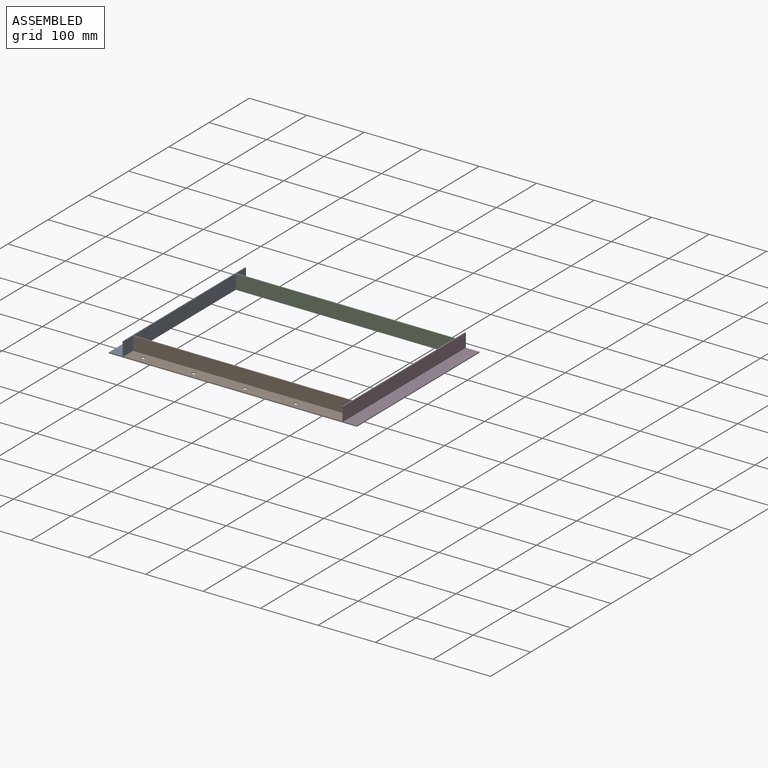
[diagram: assembled view]
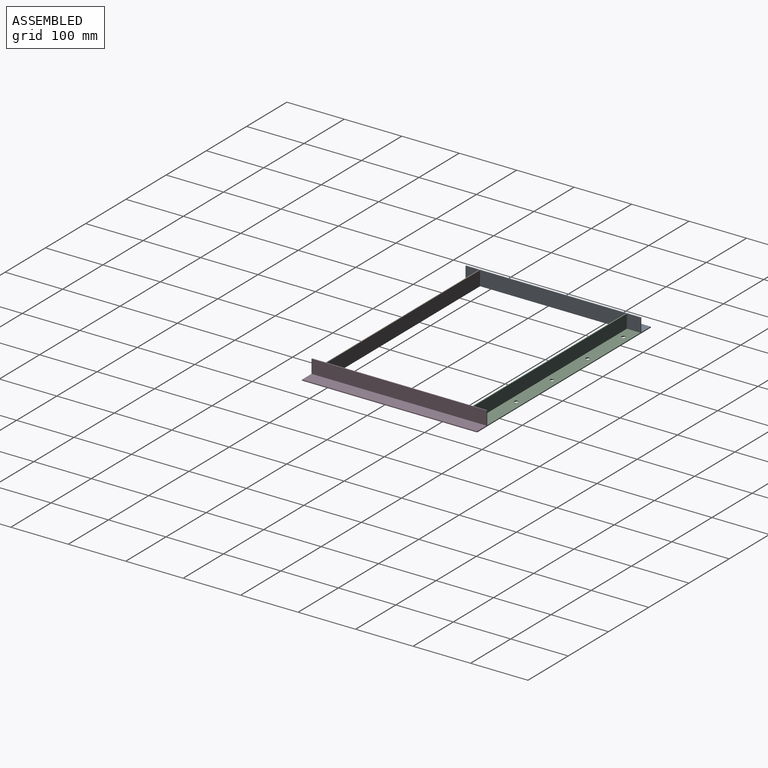
[diagram: assembled view, second angle]
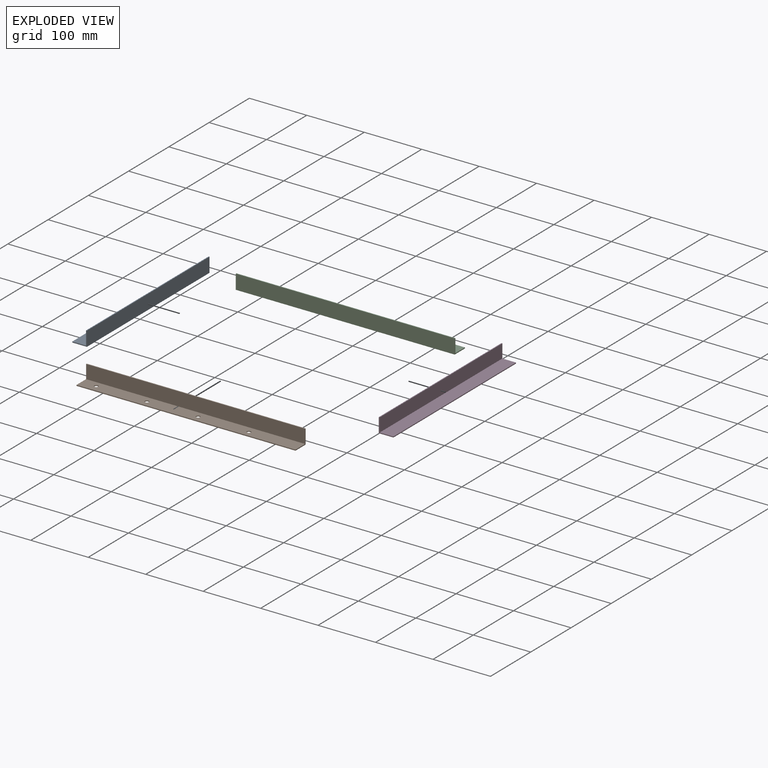
[diagram: exploded view]
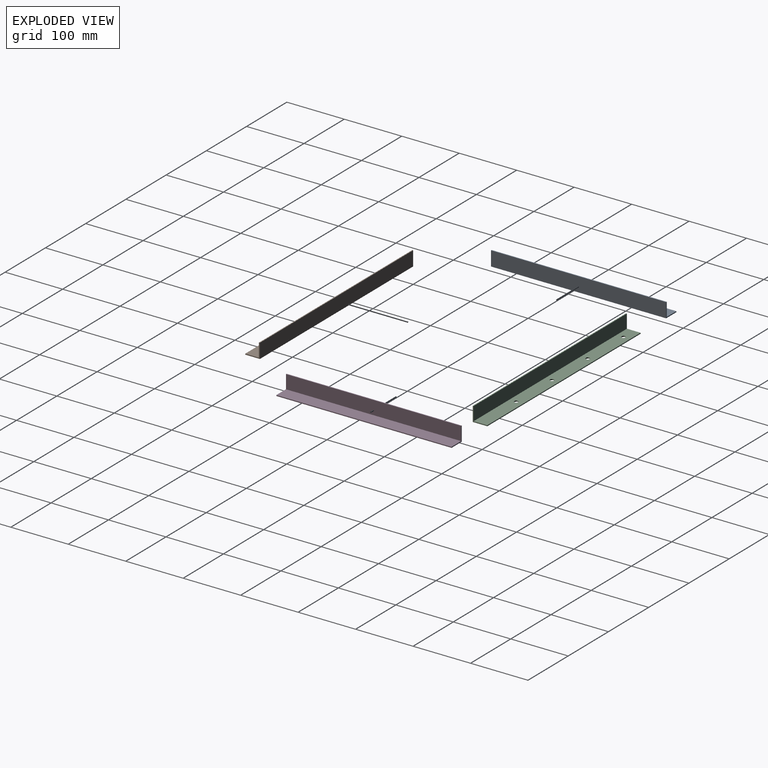
[diagram: exploded view, second angle]
ASSEMBLY  parts=4 mates=9
PART A: 8 faces, bbox 25.4x304.8x25.4 mm
  f0: plane 304.8x23.81mm, normal (0,0,1), area 7258.1mm2, adj f1,f5,f6,f7
  f1: plane 304.8x23.81mm, normal (1,0,0), area 7258.1mm2, adj f0,f2,f6,f7
  f2: plane 304.8x1.59mm, normal (0,0,1), area 483.9mm2, adj f1,f3,f6,f7
  f3: plane 304.8x25.4mm, normal (-1,0,0), area 7741.9mm2, adj f2,f4,f6,f7
  f4: plane 304.8x25.4mm, normal (0,0,-1), area 7741.9mm2, adj f3,f5,f6,f7
  f5: plane 304.8x1.59mm, normal (1,0,0), area 483.9mm2, adj f0,f4,f6,f7
  f6: plane 25.4x25.4mm, normal (0,-1,0), area 78.1mm2, adj f0,f1,f2,f3,f4,f5
  f7: plane 25.4x25.4mm, normal (0,1,0), area 78.1mm2, adj f0,f1,f2,f3,f4,f5
PART B: 12 faces, bbox 381x25.4x25.4 mm
  f0: plane 381x1.59mm, normal (0,0,1), area 604.8mm2, adj f1,f5,f6,f7
  f1: plane 381x25.4mm, normal (0,-1,0), area 9677.4mm2, adj f0,f2,f6,f7
  f2: plane 381x25.4mm, normal (0,0,-1), area 9534mm2, adj f1,f3,f6,f7,f8,f9,f10,f11
  f3: plane 381x1.59mm, normal (0,1,0), area 604.8mm2, adj f2,f4,f6,f7
  f4: plane 381x23.81mm, normal (0,0,1), area 8929.2mm2, adj f3,f5,f6,f7,f8,f9,f10,f11
  f5: plane 381x23.81mm, normal (0,1,0), area 9072.6mm2, adj f0,f4,f6,f7
  f6: plane 25.4x25.4mm, normal (1,0,0), area 78.1mm2, adj f0,f1,f2,f3,f4,f5
  f7: plane 25.4x25.4mm, normal (-1,0,0), area 78.1mm2, adj f0,f1,f2,f3,f4,f5
  f8: cylinder r=3.38mm len=6.76mm, axis (0,0,1), area 33.7mm2, adj f2,f4
  f9: cylinder r=3.38mm len=6.76mm, axis (0,0,1), area 33.7mm2, adj f2,f4
  f10: cylinder r=3.38mm len=6.76mm, axis (0,0,1), area 33.7mm2, adj f2,f4
  f11: cylinder r=3.38mm len=6.76mm, axis (0,0,1), area 33.7mm2, adj f2,f4
PART C: 12 faces, bbox 381x25.4x25.4 mm
  f0: plane 381x1.59mm, normal (0,0,1), area 604.8mm2, adj f1,f5,f6,f7
  f1: plane 381x25.4mm, normal (0,-1,0), area 9677.4mm2, adj f0,f2,f6,f7
  f2: plane 381x25.4mm, normal (0,0,-1), area 9534mm2, adj f1,f3,f6,f7,f8,f9,f10,f11
  f3: plane 381x1.59mm, normal (0,1,0), area 604.8mm2, adj f2,f4,f6,f7
  f4: plane 381x23.81mm, normal (0,0,1), area 8929.2mm2, adj f3,f5,f6,f7,f8,f9,f10,f11
  f5: plane 381x23.81mm, normal (0,1,0), area 9072.6mm2, adj f0,f4,f6,f7
  f6: plane 25.4x25.4mm, normal (1,0,0), area 78.1mm2, adj f0,f1,f2,f3,f4,f5
  f7: plane 25.4x25.4mm, normal (-1,0,0), area 78.1mm2, adj f0,f1,f2,f3,f4,f5
  f8: cylinder r=3.38mm len=6.76mm, axis (0,0,1), area 33.7mm2, adj f2,f4
  f9: cylinder r=3.38mm len=6.76mm, axis (0,0,1), area 33.7mm2, adj f2,f4
  f10: cylinder r=3.38mm len=6.76mm, axis (0,0,1), area 33.7mm2, adj f2,f4
  f11: cylinder r=3.38mm len=6.76mm, axis (0,0,1), area 33.7mm2, adj f2,f4
PART D: same geometry as A
PLACE A rot(axis=(0,0,-1),180deg) t=(-236.95,-133.73,122.28)mm
PLACE B rot(axis=(0,0,-1),180deg) t=(145.64,15.19,44.39)mm
PLACE C t=(-235.36,-9.81,140.11)mm
PLACE D rot(axis=(-0.79,0.12,0.61),0deg) t=(147.23,171.07,122.28)mm
MATE planar B.f3 <-> A.f7  axis (0,-1,0) through (-44.86,-133.73,121.49)mm
MATE planar C.f0 <-> D.f2  axis (0,0,1) through (145.64,147.25,146.1)mm
MATE planar D.f3 <-> B.f7  axis (-1,0,0) through (145.64,-133.73,146.1)mm
MATE planar A.f0 <-> B.f4  axis (0,0,1) through (-248.86,18.67,122.28)mm
MATE planar B.f3 <-> D.f6  axis (0,-1,0) through (-44.86,-133.73,121.49)mm
MATE planar B.f4 <-> D.f0  axis (0,0,1) through (-44.35,-121.83,122.28)mm
MATE planar D.f7 <-> C.f3  axis (0,1,0) through (152.58,171.07,127.64)mm
MATE planar C.f7 <-> A.f3  axis (-1,0,0) through (-235.36,152.6,127.64)mm
MATE planar A.f3 <-> B.f6  axis (1,0,0) through (-235.36,18.67,133.4)mm
